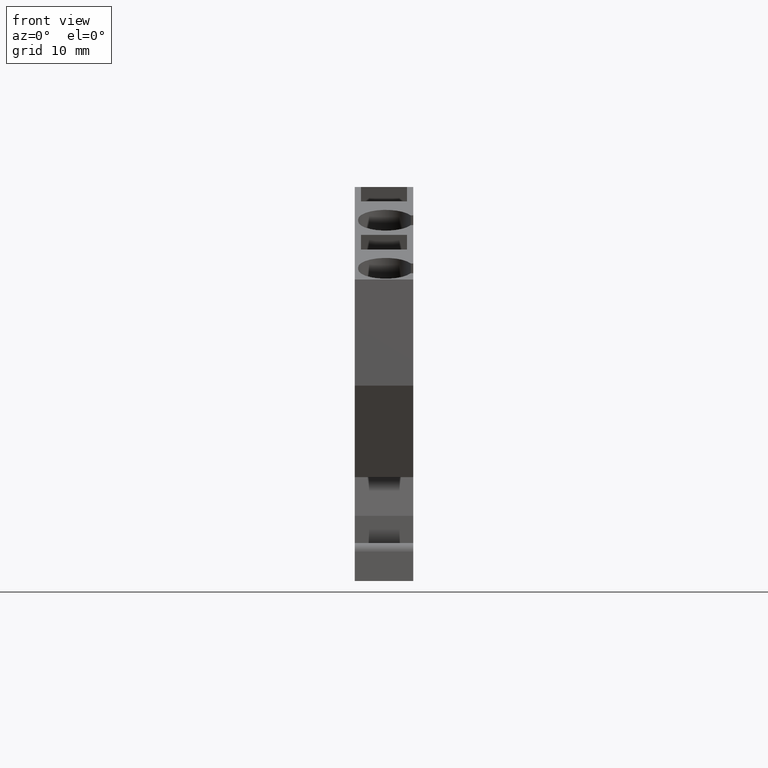
[diagram: clean part render]
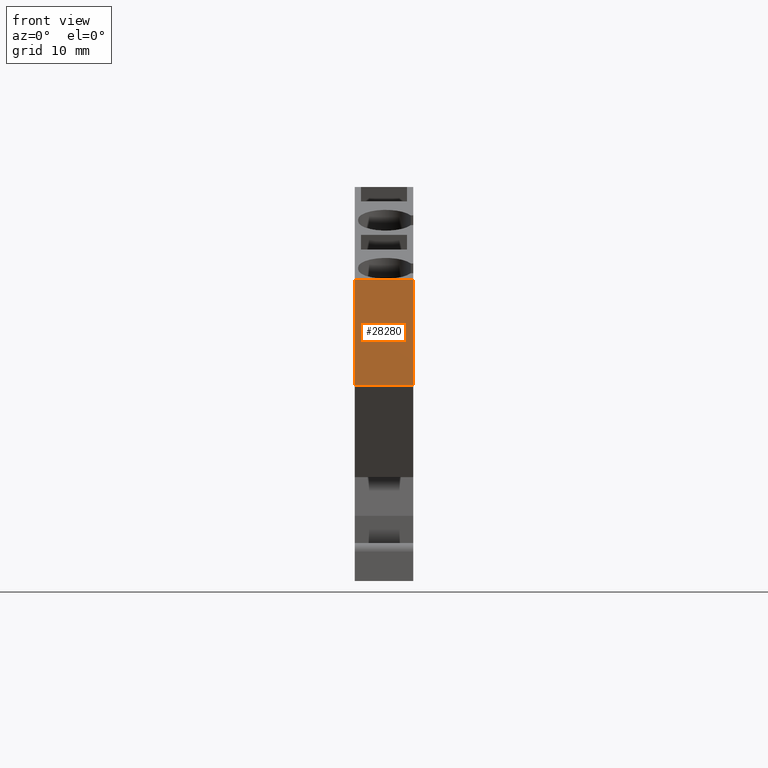
[diagram: same view with one face highlighted and labeled with its STEP entity id]
A machine part, front view. The second image highlights one B-rep face of the part: STEP entity #28280.
In plain terms, the highlighted planar face has unit normal (0, -1, -0).
Its self-contained STEP definition (entity closure, byte-faithful):
#5020=CARTESIAN_POINT('',(-106.891411355273,30.4013315533481,
0.949999999999994));
#5030=VERTEX_POINT('',#5020);
#5060=CARTESIAN_POINT('',(-106.891411355272,15.821008998583,
0.949999999999994));
#5070=DIRECTION('',(-1.20681242776754E-13,1.,0.));
#5080=VECTOR('',#5070,1.);
#5090=LINE('',#5060,#5080);
#5100=CARTESIAN_POINT('',(-106.891411355275,41.5728826430331,
0.949999999999994));
#5110=VERTEX_POINT('',#5100);
#5120=EDGE_CURVE('',#5030,#5110,#5090,.T.);
#17580=CARTESIAN_POINT('',(-106.891411355275,41.5728826430331,
0.949999999999993));
#17590=DIRECTION('',(-4.19744120455716E-31,-7.56143785790124E-15,-1.));
#17600=VECTOR('',#17590,1.);
#17610=LINE('',#17580,#17600);
#17620=CARTESIAN_POINT('',(-106.891411355275,41.5728826430331,
-5.20000000000001));
#17630=VERTEX_POINT('',#17620);
#17640=EDGE_CURVE('',#5110,#17630,#17610,.T.);
#28050=CARTESIAN_POINT('',(-106.891411355275,41.5728826430331,
0.950000000000035));
#28060=DIRECTION('',(-1.,-1.20681242776754E-13,9.12712067340711E-28));
#28070=DIRECTION('',(-1.20681242776754E-13,1.,-7.56143785790124E-15));
#28080=AXIS2_PLACEMENT_3D('',#28050,#28060,#28070);
#28090=PLANE('',#28080);
#28100=ORIENTED_EDGE('',*,*,#5120,.T.);
#28110=CARTESIAN_POINT('',(-106.891411355273,30.4013315533481,
0.949999999999993));
#28120=DIRECTION('',(-9.12712067340902E-28,1.58601430029279E-27,-1.));
#28130=VECTOR('',#28120,1.);
#28140=LINE('',#28110,#28130);
#28150=CARTESIAN_POINT('',(-106.891411355273,30.4013315533481,
-5.20000000000001));
#28160=VERTEX_POINT('',#28150);
#28170=EDGE_CURVE('',#5030,#28160,#28140,.T.);
#28180=ORIENTED_EDGE('',*,*,#28170,.F.);
#28190=CARTESIAN_POINT('',(-106.891411355272,15.821008998583,
-5.20000000000001));
#28200=DIRECTION('',(1.20681242776754E-13,-1.,0.));
#28210=VECTOR('',#28200,1.);
#28220=LINE('',#28190,#28210);
#28230=EDGE_CURVE('',#17630,#28160,#28220,.T.);
#28240=ORIENTED_EDGE('',*,*,#28230,.T.);
#28250=ORIENTED_EDGE('',*,*,#17640,.T.);
#28260=EDGE_LOOP('',(#28250,#28240,#28180,#28100));
#28270=FACE_OUTER_BOUND('',#28260,.T.);
#28280=ADVANCED_FACE('',(#28270),#28090,.T.);